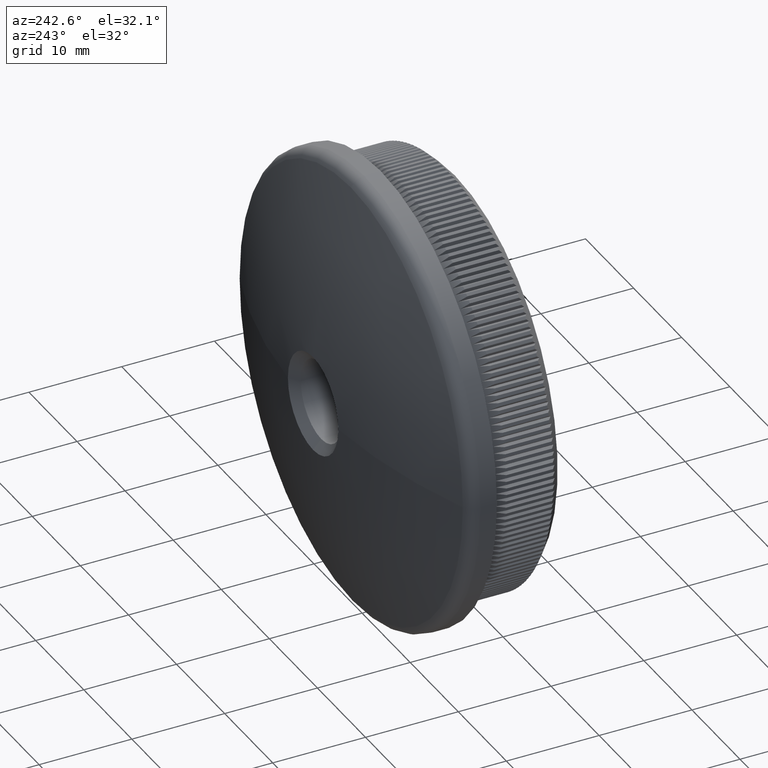
[diagram: clean part render]
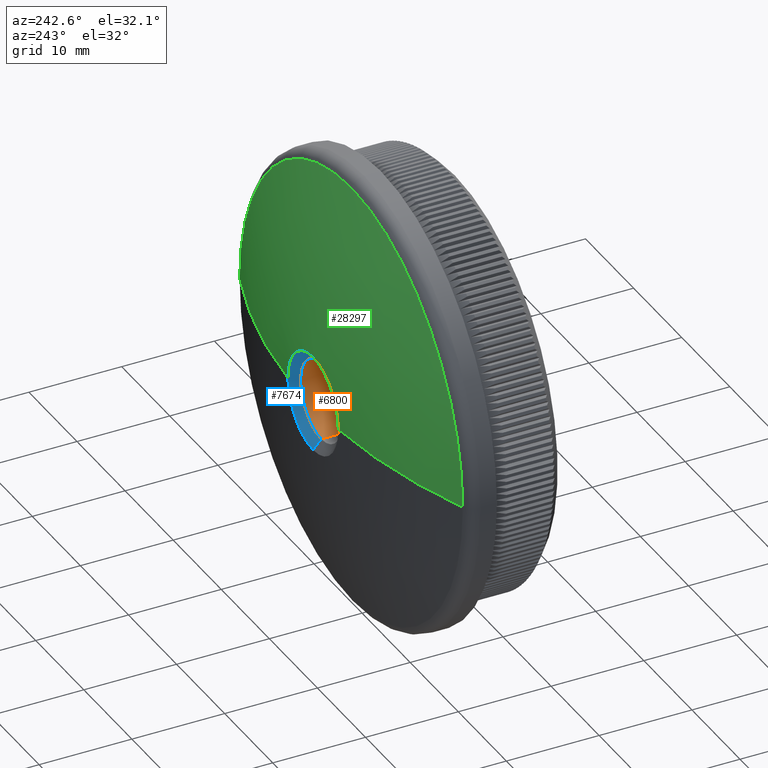
[diagram: same view with three faces highlighted in distinct colors, each labeled with its STEP entity id]
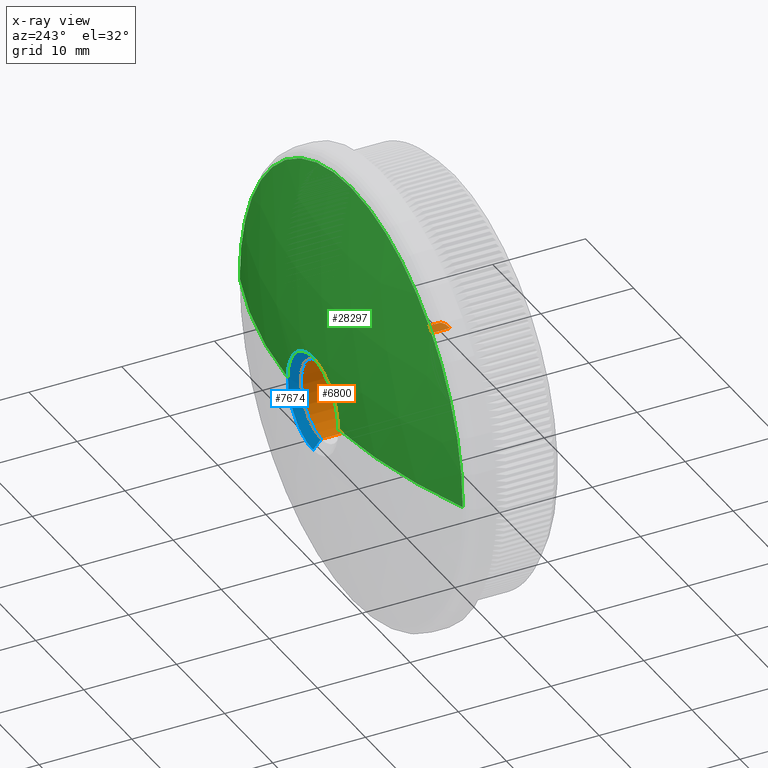
[diagram: x-ray of the same camera — body ghosted, the three highlighted faces saturated]
A machine part, auxiliary view with three faces highlighted in distinct colors.
The next image is the same camera in x-ray (body ghosted, the three faces saturated) — at least one of them is partly hidden behind the body in this view.
Their STEP definitions:

[orange] entity #6800 — the highlighted cylindrical surface (partial cylindrical patch) has radius 4.25 mm, axis along (-0, -1, -0).
#1028 = AXIS2_PLACEMENT_3D ( 'NONE', #21617, #26600, #6309 ) ;
#1075 = ORIENTED_EDGE ( 'NONE', *, *, #7095, .T. ) ;
#2915 = DIRECTION ( 'NONE',  ( -0.0000000000000000000, -1.000000000000000000, -0.0000000000000000000 ) ) ;
#3067 = DIRECTION ( 'NONE',  ( 0.0000000000000000000, 0.0000000000000000000, -1.000000000000000000 ) ) ;
#3525 = ORIENTED_EDGE ( 'NONE', *, *, #20910, .T. ) ;
#6309 = DIRECTION ( 'NONE',  ( 0.0000000000000000000, 0.0000000000000000000, 1.000000000000000000 ) ) ;
#6352 = VERTEX_POINT ( 'NONE', #16177 ) ;
#6530 = CARTESIAN_POINT ( 'NONE',  ( 5.204748896376246800E-016, 14.41958930226687500, 4.249999999999995600 ) ) ;
#6800 = ADVANCED_FACE ( 'NONE', ( #29885 ), #15222, .F. ) ;
#7095 = EDGE_CURVE ( 'NONE', #20035, #6352, #29855, .T. ) ;
#7258 = EDGE_CURVE ( 'NONE', #32570, #20035, #14789, .T. ) ;
#8288 = VECTOR ( 'NONE', #18230, 1000.000000000000000 ) ;
#8326 = AXIS2_PLACEMENT_3D ( 'NONE', #30677, #25684, #3067 ) ;
#9603 = VERTEX_POINT ( 'NONE', #6530 ) ;
#10336 = CARTESIAN_POINT ( 'NONE',  ( 0.0000000000000000000, 0.4999999999999813500, 0.0000000000000000000 ) ) ;
#11810 = CARTESIAN_POINT ( 'NONE',  ( 0.0000000000000000000, 0.4999999999999813500, -4.249999999999995600 ) ) ;
#13087 = LINE ( 'NONE', #17885, #8288 ) ;
#14029 = ORIENTED_EDGE ( 'NONE', *, *, #7258, .T. ) ;
#14663 = EDGE_LOOP ( 'NONE', ( #22648, #3525, #14029, #1075 ) ) ;
#14789 = LINE ( 'NONE', #28615, #25109 ) ;
#15222 = CYLINDRICAL_SURFACE ( 'NONE', #8326, 4.249999999999995600 ) ;
#16177 = CARTESIAN_POINT ( 'NONE',  ( 5.204748896376246800E-016, 0.4999999999999813500, 4.249999999999995600 ) ) ;
#17672 = DIRECTION ( 'NONE',  ( 0.0000000000000000000, 0.0000000000000000000, -1.000000000000000000 ) ) ;
#17885 = CARTESIAN_POINT ( 'NONE',  ( 5.204748896376246800E-016, 0.0000000000000000000, 4.249999999999995600 ) ) ;
#18230 = DIRECTION ( 'NONE',  ( -0.0000000000000000000, -1.000000000000000000, -0.0000000000000000000 ) ) ;
#20035 = VERTEX_POINT ( 'NONE', #11810 ) ;
#20265 = AXIS2_PLACEMENT_3D ( 'NONE', #10336, #22901, #17672 ) ;
#20910 = EDGE_CURVE ( 'NONE', #9603, #32570, #25067, .T. ) ;
#21617 = CARTESIAN_POINT ( 'NONE',  ( 0.0000000000000000000, 14.41958930226687500, 0.0000000000000000000 ) ) ;
#22648 = ORIENTED_EDGE ( 'NONE', *, *, #23014, .F. ) ;
#22901 = DIRECTION ( 'NONE',  ( 0.0000000000000000000, -1.000000000000000000, 0.0000000000000000000 ) ) ;
#23014 = EDGE_CURVE ( 'NONE', #9603, #6352, #13087, .T. ) ;
#25067 = CIRCLE ( 'NONE', #1028, 4.249999999999995600 ) ;
#25109 = VECTOR ( 'NONE', #2915, 1000.000000000000000 ) ;
#25684 = DIRECTION ( 'NONE',  ( -0.0000000000000000000, -1.000000000000000000, -0.0000000000000000000 ) ) ;
#26600 = DIRECTION ( 'NONE',  ( 0.0000000000000000000, 1.000000000000000000, 0.0000000000000000000 ) ) ;
#28050 = CARTESIAN_POINT ( 'NONE',  ( 0.0000000000000000000, 14.41958930226687500, -4.249999999999995600 ) ) ;
#28615 = CARTESIAN_POINT ( 'NONE',  ( 0.0000000000000000000, 0.0000000000000000000, -4.249999999999995600 ) ) ;
#29855 = CIRCLE ( 'NONE', #20265, 4.249999999999995600 ) ;
#29885 = FACE_OUTER_BOUND ( 'NONE', #14663, .T. ) ;
#30677 = CARTESIAN_POINT ( 'NONE',  ( 0.0000000000000000000, 0.0000000000000000000, 0.0000000000000000000 ) ) ;
#32570 = VERTEX_POINT ( 'NONE', #28050 ) ;

[blue] entity #7674 — the highlighted conical surface has half-angle 48.784 deg.
#140 = VERTEX_POINT ( 'NONE', #14389 ) ;
#398 = ORIENTED_EDGE ( 'NONE', *, *, #15606, .T. ) ;
#508 = AXIS2_PLACEMENT_3D ( 'NONE', #25603, #4878, #7407 ) ;
#1028 = AXIS2_PLACEMENT_3D ( 'NONE', #21617, #26600, #6309 ) ;
#1518 = CIRCLE ( 'NONE', #14651, 5.239684941423129200 ) ;
#2742 = AXIS2_PLACEMENT_3D ( 'NONE', #22849, #7168, #27478 ) ;
#4878 = DIRECTION ( 'NONE',  ( 0.0000000000000000000, 1.000000000000000000, 0.0000000000000000000 ) ) ;
#5222 = VECTOR ( 'NONE', #32089, 1000.000000000000200 ) ;
#5826 = VECTOR ( 'NONE', #13779, 1000.000000000000200 ) ;
#6309 = DIRECTION ( 'NONE',  ( 0.0000000000000000000, 0.0000000000000000000, 1.000000000000000000 ) ) ;
#6470 = CONICAL_SURFACE ( 'NONE', #508, 4.249999999999995600, 0.8514451387859506300 ) ;
#6530 = CARTESIAN_POINT ( 'NONE',  ( 5.204748896376246800E-016, 14.41958930226687500, 4.249999999999995600 ) ) ;
#7168 = DIRECTION ( 'NONE',  ( -0.0000000000000000000, -1.000000000000000000, -0.0000000000000000000 ) ) ;
#7407 = DIRECTION ( 'NONE',  ( 0.0000000000000000000, 0.0000000000000000000, 1.000000000000000000 ) ) ;
#7422 = VERTEX_POINT ( 'NONE', #11112 ) ;
#7674 = ADVANCED_FACE ( 'NONE', ( #9651 ), #6470, .F. ) ;
#8160 = VERTEX_POINT ( 'NONE', #14699 ) ;
#9603 = VERTEX_POINT ( 'NONE', #6530 ) ;
#9651 = FACE_OUTER_BOUND ( 'NONE', #12253, .T. ) ;
#10283 = EDGE_CURVE ( 'NONE', #32570, #140, #16317, .T. ) ;
#11112 = CARTESIAN_POINT ( 'NONE',  ( 5.239684941423129200, 15.28647477270349200, 0.0000000000000000000 ) ) ;
#12253 = EDGE_LOOP ( 'NONE', ( #28194, #24722, #398, #19018, #23771 ) ) ;
#13779 = DIRECTION ( 'NONE',  ( 0.0000000000000000000, 0.6588967526473940000, 0.7522333875538355100 ) ) ;
#14389 = CARTESIAN_POINT ( 'NONE',  ( 6.416763392054438900E-016, 15.28647477270349200, -5.239684941423142600 ) ) ;
#14608 = CARTESIAN_POINT ( 'NONE',  ( 0.0000000000000000000, 15.28647477270349200, 0.0000000000000000000 ) ) ;
#14651 = AXIS2_PLACEMENT_3D ( 'NONE', #14608, #32018, #29670 ) ;
#14699 = CARTESIAN_POINT ( 'NONE',  ( 0.0000000000000000000, 15.28647477270349200, 5.239684941423142600 ) ) ;
#14880 = EDGE_CURVE ( 'NONE', #7422, #8160, #1518, .T. ) ;
#15606 = EDGE_CURVE ( 'NONE', #9603, #8160, #19329, .T. ) ;
#16317 = LINE ( 'NONE', #16784, #5222 ) ;
#16784 = CARTESIAN_POINT ( 'NONE',  ( 5.204748896376246800E-016, 14.41958930226687500, -4.249999999999995600 ) ) ;
#16912 = CIRCLE ( 'NONE', #2742, 5.239684941423129200 ) ;
#19018 = ORIENTED_EDGE ( 'NONE', *, *, #14880, .F. ) ;
#19329 = LINE ( 'NONE', #31516, #5826 ) ;
#20910 = EDGE_CURVE ( 'NONE', #9603, #32570, #25067, .T. ) ;
#21617 = CARTESIAN_POINT ( 'NONE',  ( 0.0000000000000000000, 14.41958930226687500, 0.0000000000000000000 ) ) ;
#22849 = CARTESIAN_POINT ( 'NONE',  ( 0.0000000000000000000, 15.28647477270349200, 0.0000000000000000000 ) ) ;
#23771 = ORIENTED_EDGE ( 'NONE', *, *, #25983, .F. ) ;
#24722 = ORIENTED_EDGE ( 'NONE', *, *, #20910, .F. ) ;
#25067 = CIRCLE ( 'NONE', #1028, 4.249999999999995600 ) ;
#25603 = CARTESIAN_POINT ( 'NONE',  ( 0.0000000000000000000, 14.41958930226687500, 0.0000000000000000000 ) ) ;
#25983 = EDGE_CURVE ( 'NONE', #140, #7422, #16912, .T. ) ;
#26600 = DIRECTION ( 'NONE',  ( 0.0000000000000000000, 1.000000000000000000, 0.0000000000000000000 ) ) ;
#27478 = DIRECTION ( 'NONE',  ( 0.0000000000000000000, 0.0000000000000000000, -1.000000000000000000 ) ) ;
#28050 = CARTESIAN_POINT ( 'NONE',  ( 0.0000000000000000000, 14.41958930226687500, -4.249999999999995600 ) ) ;
#28194 = ORIENTED_EDGE ( 'NONE', *, *, #10283, .F. ) ;
#29670 = DIRECTION ( 'NONE',  ( 0.0000000000000000000, 0.0000000000000000000, -1.000000000000000000 ) ) ;
#31516 = CARTESIAN_POINT ( 'NONE',  ( 0.0000000000000000000, 14.41958930226687500, 4.249999999999995600 ) ) ;
#32018 = DIRECTION ( 'NONE',  ( -0.0000000000000000000, -1.000000000000000000, -0.0000000000000000000 ) ) ;
#32089 = DIRECTION ( 'NONE',  ( 9.212202102795749600E-017, 0.6588967526473940000, -0.7522333875538355100 ) ) ;
#32570 = VERTEX_POINT ( 'NONE', #28050 ) ;

[green] entity #28297 — the highlighted spherical surface has radius 64.3949 mm.
#1518 = CIRCLE ( 'NONE', #14651, 5.239684941423129200 ) ;
#1606 = CIRCLE ( 'NONE', #2029, 23.19018648117216600 ) ;
#1822 = ORIENTED_EDGE ( 'NONE', *, *, #30448, .F. ) ;
#1921 = CARTESIAN_POINT ( 'NONE',  ( 0.0000000000000000000, -48.89494680851073800, 0.0000000000000000000 ) ) ;
#2029 = AXIS2_PLACEMENT_3D ( 'NONE', #5042, #7350, #25112 ) ;
#2792 = VERTEX_POINT ( 'NONE', #16967 ) ;
#3470 = ORIENTED_EDGE ( 'NONE', *, *, #11124, .T. ) ;
#3642 = CARTESIAN_POINT ( 'NONE',  ( 0.0000000000000000000, -48.89494680851073800, 0.0000000000000000000 ) ) ;
#4228 = DIRECTION ( 'NONE',  ( 0.0000000000000000000, 0.0000000000000000000, 1.000000000000000000 ) ) ;
#5042 = CARTESIAN_POINT ( 'NONE',  ( 0.0000000000000000000, 11.17937736945556700, 0.0000000000000000000 ) ) ;
#5953 = VERTEX_POINT ( 'NONE', #24404 ) ;
#6211 = DIRECTION ( 'NONE',  ( 0.0000000000000000000, 0.0000000000000000000, -1.000000000000000000 ) ) ;
#6585 = ORIENTED_EDGE ( 'NONE', *, *, #14880, .T. ) ;
#7350 = DIRECTION ( 'NONE',  ( 0.0000000000000000000, 1.000000000000000000, 0.0000000000000000000 ) ) ;
#7422 = VERTEX_POINT ( 'NONE', #11112 ) ;
#7465 = CARTESIAN_POINT ( 'NONE',  ( -5.239684941423129200, 15.28647477270349200, 1.740827551892606700E-015 ) ) ;
#7543 = DIRECTION ( 'NONE',  ( 0.0000000000000000000, 0.0000000000000000000, -1.000000000000000000 ) ) ;
#7947 = EDGE_LOOP ( 'NONE', ( #6585, #22444, #21071, #3470, #21001, #1822 ) ) ;
#8160 = VERTEX_POINT ( 'NONE', #14699 ) ;
#9197 = DIRECTION ( 'NONE',  ( 1.000000000000000000, 0.0000000000000000000, 0.0000000000000000000 ) ) ;
#9548 = AXIS2_PLACEMENT_3D ( 'NONE', #1921, #4228, #9197 ) ;
#11069 = VERTEX_POINT ( 'NONE', #7465 ) ;
#11112 = CARTESIAN_POINT ( 'NONE',  ( 5.239684941423129200, 15.28647477270349200, 0.0000000000000000000 ) ) ;
#11124 = EDGE_CURVE ( 'NONE', #18623, #5953, #1606, .T. ) ;
#13292 = FACE_OUTER_BOUND ( 'NONE', #7947, .T. ) ;
#13434 = DIRECTION ( 'NONE',  ( -1.000000000000000000, 0.0000000000000000000, 0.0000000000000000000 ) ) ;
#14608 = CARTESIAN_POINT ( 'NONE',  ( 0.0000000000000000000, 15.28647477270349200, 0.0000000000000000000 ) ) ;
#14651 = AXIS2_PLACEMENT_3D ( 'NONE', #14608, #32018, #29670 ) ;
#14699 = CARTESIAN_POINT ( 'NONE',  ( 0.0000000000000000000, 15.28647477270349200, 5.239684941423142600 ) ) ;
#14880 = EDGE_CURVE ( 'NONE', #7422, #8160, #1518, .T. ) ;
#15246 = CARTESIAN_POINT ( 'NONE',  ( 0.0000000000000000000, 15.28647477270349200, 0.0000000000000000000 ) ) ;
#15392 = EDGE_CURVE ( 'NONE', #8160, #11069, #29603, .T. ) ;
#16967 = CARTESIAN_POINT ( 'NONE',  ( 23.19018648117216600, 11.17937736945556400, 0.0000000000000000000 ) ) ;
#17049 = EDGE_CURVE ( 'NONE', #11069, #18623, #27960, .T. ) ;
#17422 = DIRECTION ( 'NONE',  ( 0.0000000000000000000, 1.000000000000000000, 0.0000000000000000000 ) ) ;
#18475 = DIRECTION ( 'NONE',  ( 1.224646799147353200E-016, -0.0000000000000000000, 1.000000000000000000 ) ) ;
#18623 = VERTEX_POINT ( 'NONE', #27379 ) ;
#19551 = CIRCLE ( 'NONE', #25125, 64.39494680851073800 ) ;
#21001 = ORIENTED_EDGE ( 'NONE', *, *, #28375, .T. ) ;
#21071 = ORIENTED_EDGE ( 'NONE', *, *, #17049, .T. ) ;
#22444 = ORIENTED_EDGE ( 'NONE', *, *, #15392, .T. ) ;
#22908 = DIRECTION ( 'NONE',  ( -0.0000000000000000000, -1.000000000000000000, -0.0000000000000000000 ) ) ;
#23796 = AXIS2_PLACEMENT_3D ( 'NONE', #15246, #22908, #30196 ) ;
#24370 = CIRCLE ( 'NONE', #28268, 23.19018648117216600 ) ;
#24404 = CARTESIAN_POINT ( 'NONE',  ( 2.898750392260314800E-015, 11.17937736945556700, 23.19018648117216600 ) ) ;
#25112 = DIRECTION ( 'NONE',  ( 0.0000000000000000000, 0.0000000000000000000, -1.000000000000000000 ) ) ;
#25125 = AXIS2_PLACEMENT_3D ( 'NONE', #3642, #6211, #13434 ) ;
#25416 = CARTESIAN_POINT ( 'NONE',  ( 0.0000000000000000000, 11.17937736945556700, 0.0000000000000000000 ) ) ;
#26091 = DIRECTION ( 'NONE',  ( 1.000000000000000000, 0.0000000000000000000, -1.224646799147353200E-016 ) ) ;
#27379 = CARTESIAN_POINT ( 'NONE',  ( -23.19018648117216600, 11.17937736945556400, 2.839978764579771300E-015 ) ) ;
#27960 = CIRCLE ( 'NONE', #32091, 64.39494680851073800 ) ;
#28268 = AXIS2_PLACEMENT_3D ( 'NONE', #25416, #17422, #7543 ) ;
#28297 = ADVANCED_FACE ( 'NONE', ( #13292 ), #30320, .T. ) ;
#28375 = EDGE_CURVE ( 'NONE', #5953, #2792, #24370, .T. ) ;
#29603 = CIRCLE ( 'NONE', #23796, 5.239684941423129200 ) ;
#29670 = DIRECTION ( 'NONE',  ( 0.0000000000000000000, 0.0000000000000000000, -1.000000000000000000 ) ) ;
#30196 = DIRECTION ( 'NONE',  ( 0.0000000000000000000, 0.0000000000000000000, -1.000000000000000000 ) ) ;
#30320 = SPHERICAL_SURFACE ( 'NONE', #9548, 64.39494680851073800 ) ;
#30448 = EDGE_CURVE ( 'NONE', #7422, #2792, #19551, .T. ) ;
#31406 = CARTESIAN_POINT ( 'NONE',  ( 0.0000000000000000000, -48.89494680851073800, 0.0000000000000000000 ) ) ;
#32018 = DIRECTION ( 'NONE',  ( -0.0000000000000000000, -1.000000000000000000, -0.0000000000000000000 ) ) ;
#32091 = AXIS2_PLACEMENT_3D ( 'NONE', #31406, #18475, #26091 ) ;